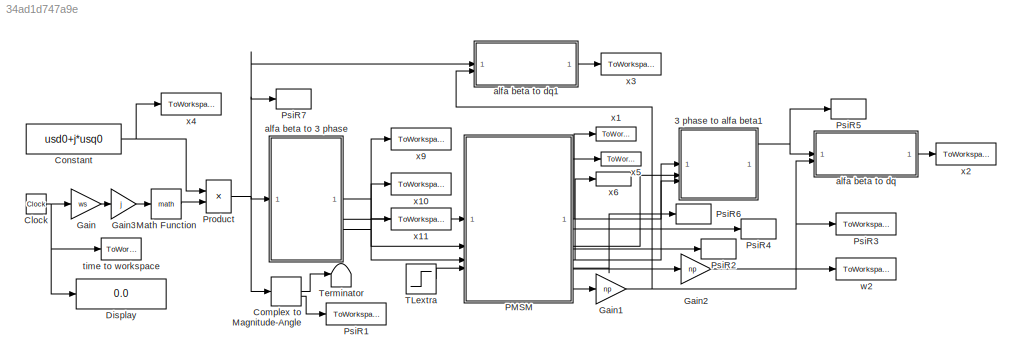
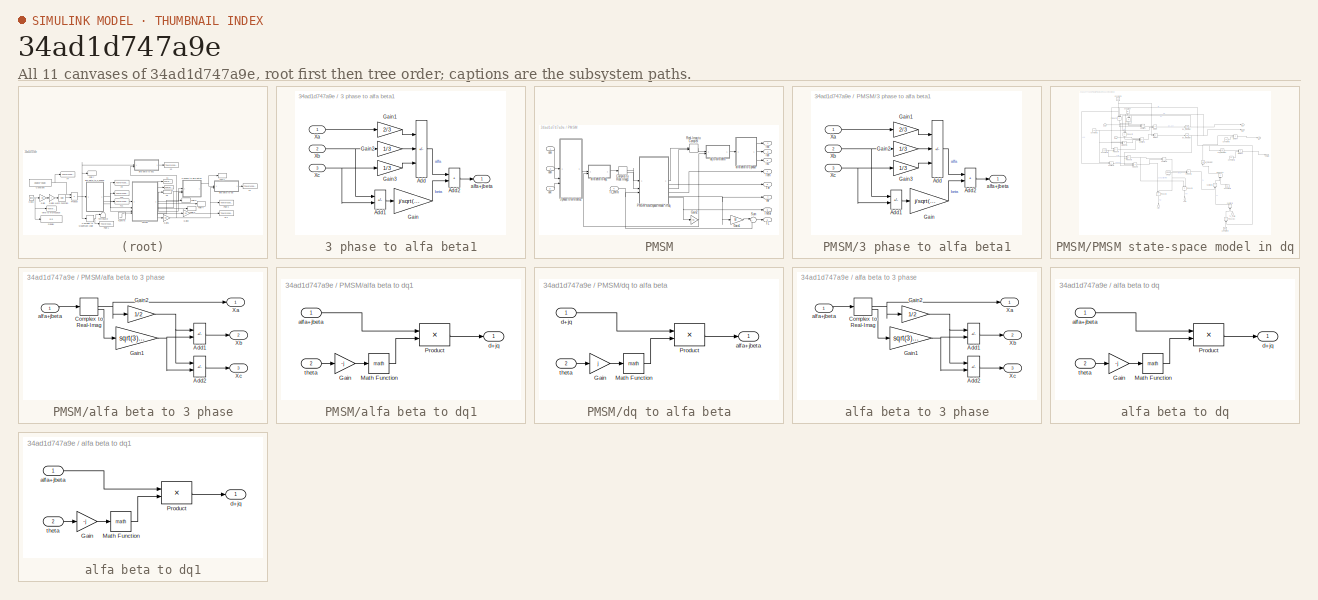
[diagram: thumbnail index - all 11 canvases of the model, root first then tree order]
MODEL slx_34ad1d747a9e
KIND model
CONFIG AbsTol = 1e-8
CONFIG EnableMultiTasking = off
CONFIG FixedStep = auto
CONFIG MaxStep = 1e-3
CONFIG MinStep = auto
CONFIG RelTol = 1e-6
CONFIG SampleTimeConstraint = Unconstrained
CONFIG SolverName = ode45
CONFIG StartTime = 0.0
CONFIG StopTime = 10.0
BLOCK [SubSystem] 3 phase to alfa beta1
  NameLocation = top
BLOCK [Sum] 3 phase to alfa beta1/Add
  IconShape = rectangular
  Inputs = +--
BLOCK [Sum] 3 phase to alfa beta1/Add1
  IconShape = rectangular
  Inputs = +-
BLOCK [Sum] 3 phase to alfa beta1/Add2
  IconShape = rectangular
BLOCK [Gain] 3 phase to alfa beta1/Gain
  Gain = j/sqrt(3)
BLOCK [Gain] 3 phase to alfa beta1/Gain1
  Gain = 2/3
BLOCK [Gain] 3 phase to alfa beta1/Gain2
  Gain = 1/3
BLOCK [Gain] 3 phase to alfa beta1/Gain3
  Gain = 1/3
BLOCK [Inport] 3 phase to alfa beta1/Xa
BLOCK [Inport] 3 phase to alfa beta1/Xb
  Port = 2
BLOCK [Inport] 3 phase to alfa beta1/Xc
  Port = 3
BLOCK [Outport] 3 phase to alfa beta1/alfa+jbeta
  VectorParamsAs1DForOutWhenUnconnected = off
BLOCK [Clock] Clock
BLOCK [ComplexToMagnitudeAngle] Complex to Magnitude-Angle
BLOCK [Constant] Constant
  Value = usd0+j*usq0
BLOCK [Display] Display
  Decimation = 1
BLOCK [Gain] Gain
  Gain = ws
BLOCK [Gain] Gain1
  Gain = np
BLOCK [Gain] Gain2
  Gain = np
BLOCK [Gain] Gain3
  Gain = j
  OutDataTypeStr = Inherit: Same as input
  ParamDataTypeStr = Inherit: Same as input
  SaturateOnIntegerOverflow = on
BLOCK [Math] Math Function
  SignedPower = on
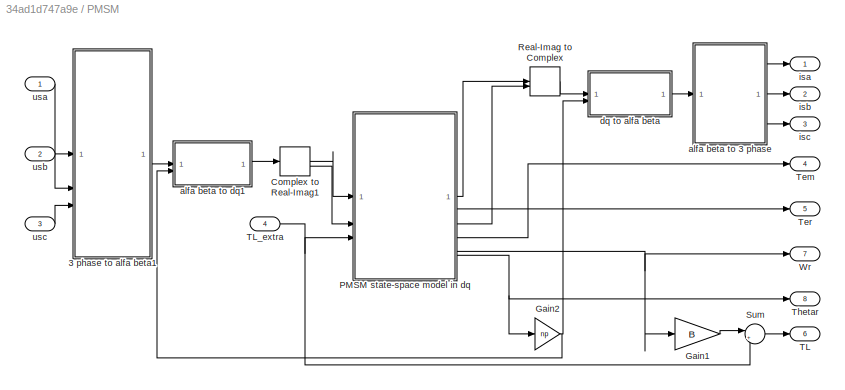
BLOCK [SubSystem] PMSM
BLOCK [SubSystem] PMSM/3 phase to alfa beta1
  NameLocation = top
BLOCK [Sum] PMSM/3 phase to alfa beta1/Add
  IconShape = rectangular
  Inputs = +--
BLOCK [Sum] PMSM/3 phase to alfa beta1/Add1
  IconShape = rectangular
  Inputs = +-
BLOCK [Sum] PMSM/3 phase to alfa beta1/Add2
  IconShape = rectangular
BLOCK [Gain] PMSM/3 phase to alfa beta1/Gain
  Gain = j/sqrt(3)
BLOCK [Gain] PMSM/3 phase to alfa beta1/Gain1
  Gain = 2/3
BLOCK [Gain] PMSM/3 phase to alfa beta1/Gain2
  Gain = 1/3
BLOCK [Gain] PMSM/3 phase to alfa beta1/Gain3
  Gain = 1/3
BLOCK [Inport] PMSM/3 phase to alfa beta1/Xa
BLOCK [Inport] PMSM/3 phase to alfa beta1/Xb
  Port = 2
BLOCK [Inport] PMSM/3 phase to alfa beta1/Xc
  Port = 3
BLOCK [Outport] PMSM/3 phase to alfa beta1/alfa+jbeta
  VectorParamsAs1DForOutWhenUnconnected = off
BLOCK [ComplexToRealImag] PMSM/Complex to Real-Imag1
BLOCK [Gain] PMSM/Gain1
  Gain = B
BLOCK [Gain] PMSM/Gain2
  Gain = np
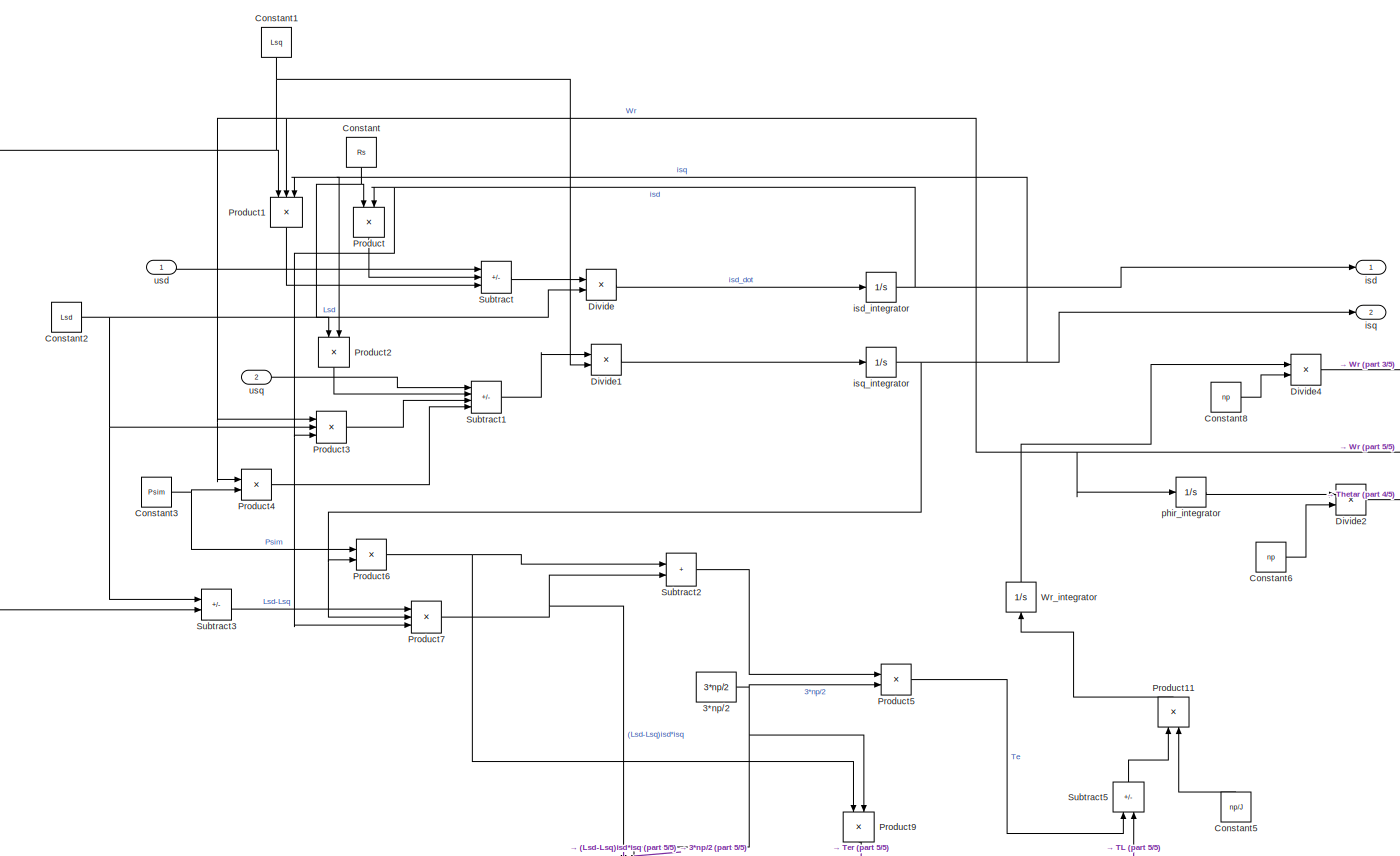
[diagram: PMSM/PMSM state-space model in dq - part 1/5, full width, middle band]
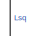
[diagram: PMSM/PMSM state-space model in dq - part 2/5, top left region]
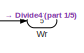
[diagram: PMSM/PMSM state-space model in dq - part 3/5, top right region]
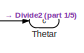
[diagram: PMSM/PMSM state-space model in dq - part 4/5, middle right region]
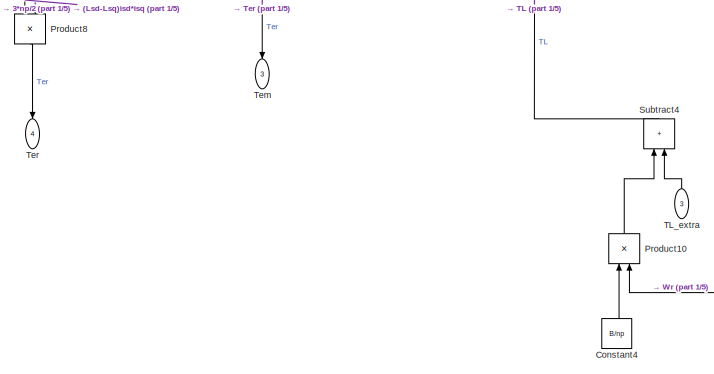
[diagram: PMSM/PMSM state-space model in dq - part 5/5, bottom center region]
BLOCK [SubSystem] PMSM/PMSM state-space model in dq
BLOCK [Constant] PMSM/PMSM state-space model in dq/3*np//2
  Value = 3*np/2
BLOCK [Constant] PMSM/PMSM state-space model in dq/Constant
  NameLocation = left
  Value = Rs
BLOCK [Constant] PMSM/PMSM state-space model in dq/Constant1
  NameLocation = left
  Value = Lsq
BLOCK [Constant] PMSM/PMSM state-space model in dq/Constant2
  Value = Lsd
BLOCK [Constant] PMSM/PMSM state-space model in dq/Constant3
  Value = Psim
BLOCK [Constant] PMSM/PMSM state-space model in dq/Constant4
  NameLocation = right
  Value = B/np
BLOCK [Constant] PMSM/PMSM state-space model in dq/Constant5
  NameLocation = right
  Value = np/J
BLOCK [Constant] PMSM/PMSM state-space model in dq/Constant6
  Value = np
BLOCK [Constant] PMSM/PMSM state-space model in dq/Constant8
  Value = np
BLOCK [Product] PMSM/PMSM state-space model in dq/Divide
  Inputs = */
BLOCK [Product] PMSM/PMSM state-space model in dq/Divide1
  Inputs = */
BLOCK [Product] PMSM/PMSM state-space model in dq/Divide2
  Inputs = */
BLOCK [Product] PMSM/PMSM state-space model in dq/Divide4
  Inputs = */
BLOCK [Product] PMSM/PMSM state-space model in dq/Product
  NameLocation = left
BLOCK [Product] PMSM/PMSM state-space model in dq/Product1
  Inputs = 3
  NameLocation = left
BLOCK [Product] PMSM/PMSM state-space model in dq/Product10
  NameLocation = right
BLOCK [Product] PMSM/PMSM state-space model in dq/Product11
  NameLocation = right
BLOCK [Product] PMSM/PMSM state-space model in dq/Product2
  NameLocation = left
BLOCK [Product] PMSM/PMSM state-space model in dq/Product3
  Inputs = 3
BLOCK [Product] PMSM/PMSM state-space model in dq/Product4
BLOCK [Product] PMSM/PMSM state-space model in dq/Product5
BLOCK [Product] PMSM/PMSM state-space model in dq/Product6
BLOCK [Product] PMSM/PMSM state-space model in dq/Product7
  Inputs = 3
BLOCK [Product] PMSM/PMSM state-space model in dq/Product8
  NameLocation = left
BLOCK [Product] PMSM/PMSM state-space model in dq/Product9
  NameLocation = left
BLOCK [Sum] PMSM/PMSM state-space model in dq/Subtract
  IconShape = rectangular
  Inputs = +-+
BLOCK [Sum] PMSM/PMSM state-space model in dq/Subtract1
  IconShape = rectangular
  Inputs = +---
BLOCK [Sum] PMSM/PMSM state-space model in dq/Subtract2
  IconShape = rectangular
BLOCK [Sum] PMSM/PMSM state-space model in dq/Subtract3
  IconShape = rectangular
  Inputs = +-
BLOCK [Sum] PMSM/PMSM state-space model in dq/Subtract4
  IconShape = rectangular
  NameLocation = right
BLOCK [Sum] PMSM/PMSM state-space model in dq/Subtract5
  IconShape = rectangular
  Inputs = +-
  NameLocation = right
BLOCK [Inport] PMSM/PMSM state-space model in dq/TL_extra
  NameLocation = right
  Port = 3
BLOCK [Outport] PMSM/PMSM state-space model in dq/Tem
  NameLocation = left
  Port = 3
  VectorParamsAs1DForOutWhenUnconnected = off
BLOCK [Outport] PMSM/PMSM state-space model in dq/Ter
  NameLocation = left
  Port = 4
  VectorParamsAs1DForOutWhenUnconnected = off
BLOCK [Outport] PMSM/PMSM state-space model in dq/Thetar
  Port = 6
  VectorParamsAs1DForOutWhenUnconnected = off
BLOCK [Outport] PMSM/PMSM state-space model in dq/Wr
  Port = 5
  VectorParamsAs1DForOutWhenUnconnected = off
BLOCK [Integrator] PMSM/PMSM state-space model in dq/Wr_integrator
  InitialCondition = wr0
  LimitOutput = on
  LowerSaturationLimit = 0
  NameLocation = right
BLOCK [Outport] PMSM/PMSM state-space model in dq/isd
  VectorParamsAs1DForOutWhenUnconnected = off
BLOCK [Integrator] PMSM/PMSM state-space model in dq/isd_integrator
  InitialCondition = isd0
BLOCK [Outport] PMSM/PMSM state-space model in dq/isq
  Port = 2
  VectorParamsAs1DForOutWhenUnconnected = off
BLOCK [Integrator] PMSM/PMSM state-space model in dq/isq_integrator
  InitialCondition = isq0
BLOCK [Integrator] PMSM/PMSM state-space model in dq/phir_integrator
  InitialCondition = theta0
BLOCK [Inport] PMSM/PMSM state-space model in dq/usd
BLOCK [Inport] PMSM/PMSM state-space model in dq/usq
  Port = 2
BLOCK [RealImagToComplex] PMSM/Real-Imag to Complex
BLOCK [Sum] PMSM/Sum
  Inputs = |++
  SaturateOnIntegerOverflow = on
BLOCK [Outport] PMSM/TL
  Port = 6
  VectorParamsAs1DForOutWhenUnconnected = off
BLOCK [Inport] PMSM/TL_extra
  Port = 4
BLOCK [Outport] PMSM/Tem
  Port = 4
  VectorParamsAs1DForOutWhenUnconnected = off
BLOCK [Outport] PMSM/Ter
  Port = 5
  VectorParamsAs1DForOutWhenUnconnected = off
BLOCK [Outport] PMSM/Thetar
  Port = 8
  VectorParamsAs1DForOutWhenUnconnected = off
BLOCK [Outport] PMSM/Wr
  Port = 7
  VectorParamsAs1DForOutWhenUnconnected = off
BLOCK [SubSystem] PMSM/alfa beta to 3 phase
  NameLocation = top
BLOCK [Sum] PMSM/alfa beta to 3 phase/Add1
  IconShape = rectangular
  Inputs = -+
BLOCK [Sum] PMSM/alfa beta to 3 phase/Add2
  IconShape = rectangular
  Inputs = --
BLOCK [ComplexToRealImag] PMSM/alfa beta to 3 phase/Complex to Real-Imag
BLOCK [Gain] PMSM/alfa beta to 3 phase/Gain1
  Gain = sqrt(3)/2
BLOCK [Gain] PMSM/alfa beta to 3 phase/Gain2
  Gain = 1/2
BLOCK [Outport] PMSM/alfa beta to 3 phase/Xa
  VectorParamsAs1DForOutWhenUnconnected = off
BLOCK [Outport] PMSM/alfa beta to 3 phase/Xb
  Port = 2
  VectorParamsAs1DForOutWhenUnconnected = off
BLOCK [Outport] PMSM/alfa beta to 3 phase/Xc
  Port = 3
  VectorParamsAs1DForOutWhenUnconnected = off
BLOCK [Inport] PMSM/alfa beta to 3 phase/alfa+jbeta
BLOCK [SubSystem] PMSM/alfa beta to dq1
BLOCK [Gain] PMSM/alfa beta to dq1/Gain
  Gain = -j
  OutDataTypeStr = Inherit: Same as input
  ParamDataTypeStr = Inherit: Same as input
  SaturateOnIntegerOverflow = on
BLOCK [Math] PMSM/alfa beta to dq1/Math Function
  SignedPower = on
BLOCK [Product] PMSM/alfa beta to dq1/Product
  OutDataTypeStr = Inherit: Same as first input
  SaturateOnIntegerOverflow = on
BLOCK [Inport] PMSM/alfa beta to dq1/alfa+jbeta
BLOCK [Outport] PMSM/alfa beta to dq1/d+jq
  VectorParamsAs1DForOutWhenUnconnected = off
BLOCK [Inport] PMSM/alfa beta to dq1/theta
  Port = 2
BLOCK [SubSystem] PMSM/dq to alfa beta
BLOCK [Gain] PMSM/dq to alfa beta/Gain
  Gain = j
  OutDataTypeStr = Inherit: Same as input
  ParamDataTypeStr = Inherit: Same as input
  SaturateOnIntegerOverflow = on
BLOCK [Math] PMSM/dq to alfa beta/Math Function
  SignedPower = on
BLOCK [Product] PMSM/dq to alfa beta/Product
  OutDataTypeStr = Inherit: Same as first input
  SaturateOnIntegerOverflow = on
BLOCK [Outport] PMSM/dq to alfa beta/alfa+jbeta
  VectorParamsAs1DForOutWhenUnconnected = off
BLOCK [Inport] PMSM/dq to alfa beta/d+jq
BLOCK [Inport] PMSM/dq to alfa beta/theta
  Port = 2
BLOCK [Outport] PMSM/isa
  VectorParamsAs1DForOutWhenUnconnected = off
BLOCK [Outport] PMSM/isb
  Port = 2
  VectorParamsAs1DForOutWhenUnconnected = off
BLOCK [Outport] PMSM/isc
  Port = 3
  VectorParamsAs1DForOutWhenUnconnected = off
BLOCK [Inport] PMSM/usa
BLOCK [Inport] PMSM/usb
  Port = 2
BLOCK [Inport] PMSM/usc
  Port = 3
BLOCK [Product] Product
  OutDataTypeStr = Inherit: Same as first input
  SaturateOnIntegerOverflow = on
BLOCK [ToWorkspace] PsiR1
  MaxDataPoints = inf
  SampleTime = -1
  VariableName = thetas
BLOCK [ToWorkspace] PsiR2
  MaxDataPoints = inf
  SampleTime = -1
  VariableName = Tl
BLOCK [ToWorkspace] PsiR3
  MaxDataPoints = inf
  SampleTime = -1
  VariableName = thetar
BLOCK [ToWorkspace] PsiR4
  MaxDataPoints = inf
  SampleTime = -1
  VariableName = Ter
BLOCK [ToWorkspace] PsiR5
  MaxDataPoints = inf
  SampleTime = -1
  VariableName = iss
BLOCK [ToWorkspace] PsiR6
  MaxDataPoints = inf
  SampleTime = -1
  VariableName = Tem
BLOCK [ToWorkspace] PsiR7
  MaxDataPoints = inf
  SampleTime = -1
  VariableName = uss
BLOCK [Step] TLextra
  After = TL_extra
  SampleTime = 0
  Time = TL_extra_time
BLOCK [Terminator] Terminator
BLOCK [SubSystem] alfa beta to 3 phase
  NameLocation = top
BLOCK [Sum] alfa beta to 3 phase/Add1
  IconShape = rectangular
  Inputs = -+
BLOCK [Sum] alfa beta to 3 phase/Add2
  IconShape = rectangular
  Inputs = --
BLOCK [ComplexToRealImag] alfa beta to 3 phase/Complex to Real-Imag
BLOCK [Gain] alfa beta to 3 phase/Gain1
  Gain = sqrt(3)/2
BLOCK [Gain] alfa beta to 3 phase/Gain2
  Gain = 1/2
BLOCK [Outport] alfa beta to 3 phase/Xa
  VectorParamsAs1DForOutWhenUnconnected = off
BLOCK [Outport] alfa beta to 3 phase/Xb
  Port = 2
  VectorParamsAs1DForOutWhenUnconnected = off
BLOCK [Outport] alfa beta to 3 phase/Xc
  Port = 3
  VectorParamsAs1DForOutWhenUnconnected = off
BLOCK [Inport] alfa beta to 3 phase/alfa+jbeta
BLOCK [SubSystem] alfa beta to dq
BLOCK [Gain] alfa beta to dq/Gain
  Gain = -j
  OutDataTypeStr = Inherit: Same as input
  ParamDataTypeStr = Inherit: Same as input
  SaturateOnIntegerOverflow = on
BLOCK [Math] alfa beta to dq/Math Function
  SignedPower = on
BLOCK [Product] alfa beta to dq/Product
  OutDataTypeStr = Inherit: Same as first input
  SaturateOnIntegerOverflow = on
BLOCK [Inport] alfa beta to dq/alfa+jbeta
BLOCK [Outport] alfa beta to dq/d+jq
  VectorParamsAs1DForOutWhenUnconnected = off
BLOCK [Inport] alfa beta to dq/theta
  Port = 2
BLOCK [SubSystem] alfa beta to dq1
BLOCK [Gain] alfa beta to dq1/Gain
  Gain = -j
  OutDataTypeStr = Inherit: Same as input
  ParamDataTypeStr = Inherit: Same as input
  SaturateOnIntegerOverflow = on
BLOCK [Math] alfa beta to dq1/Math Function
  SignedPower = on
BLOCK [Product] alfa beta to dq1/Product
  OutDataTypeStr = Inherit: Same as first input
  SaturateOnIntegerOverflow = on
BLOCK [Inport] alfa beta to dq1/alfa+jbeta
BLOCK [Outport] alfa beta to dq1/d+jq
  VectorParamsAs1DForOutWhenUnconnected = off
BLOCK [Inport] alfa beta to dq1/theta
  Port = 2
BLOCK [ToWorkspace] time to workspace
  MaxDataPoints = inf
  SampleTime = -1
  VariableName = time
BLOCK [ToWorkspace] w2
  MaxDataPoints = inf
  SampleTime = -1
  VariableName = w1
BLOCK [ToWorkspace] x1
  MaxDataPoints = inf
  SampleTime = -1
  VariableName = isa
BLOCK [ToWorkspace] x10
  MaxDataPoints = inf
  SampleTime = -1
  VariableName = usb
BLOCK [ToWorkspace] x11
  MaxDataPoints = inf
  SampleTime = -1
  VariableName = usc
BLOCK [ToWorkspace] x2
  MaxDataPoints = inf
  SampleTime = -1
  VariableName = idq
BLOCK [ToWorkspace] x3
  MaxDataPoints = inf
  SampleTime = -1
  VariableName = usdq
BLOCK [ToWorkspace] x4
  MaxDataPoints = inf
  SampleTime = -1
  VariableName = usxy
BLOCK [ToWorkspace] x5
  MaxDataPoints = inf
  SampleTime = -1
  VariableName = isb
BLOCK [ToWorkspace] x6
  MaxDataPoints = inf
  SampleTime = -1
  VariableName = isc
BLOCK [ToWorkspace] x9
  MaxDataPoints = inf
  SampleTime = -1
  VariableName = usa
LINE 3 phase to alfa beta1/Add1:1 -> 3 phase to alfa beta1/Gain:1
LINE 3 phase to alfa beta1/Add2:1 -> 3 phase to alfa beta1/alfa+jbeta:1
LINE 3 phase to alfa beta1/Add:1 -> 3 phase to alfa beta1/Add2:1
LINE 3 phase to alfa beta1/Gain1:1 -> 3 phase to alfa beta1/Add:1
LINE 3 phase to alfa beta1/Gain2:1 -> 3 phase to alfa beta1/Add:2
LINE 3 phase to alfa beta1/Gain3:1 -> 3 phase to alfa beta1/Add:3
LINE 3 phase to alfa beta1/Gain:1 -> 3 phase to alfa beta1/Add2:2
LINE 3 phase to alfa beta1/Xa:1 -> 3 phase to alfa beta1/Gain1:1
NET 3 phase to alfa beta1/Xb:1 -> 3 phase to alfa beta1/Add1:1, 3 phase to alfa beta1/Gain2:1
NET 3 phase to alfa beta1/Xc:1 -> 3 phase to alfa beta1/Add1:2, 3 phase to alfa beta1/Gain3:1
NET 3 phase to alfa beta1:1 -> PsiR5:1, alfa beta to dq:1
NET Clock:1 -> Display:1, Gain:1, time to workspace:1
LINE Complex to Magnitude-Angle:1 -> Terminator:1
LINE Complex to Magnitude-Angle:2 -> PsiR1:1
NET Constant:1 -> Product:1, x4:1
NET Gain1:1 -> PsiR3:1, alfa beta to dq1:2, alfa beta to dq:2
LINE Gain2:1 -> w2:1
LINE Gain3:1 -> Math Function:1
LINE Gain:1 -> Gain3:1
LINE Math Function:1 -> Product:2
LINE PMSM/3 phase to alfa beta1/Add1:1 -> PMSM/3 phase to alfa beta1/Gain:1
LINE PMSM/3 phase to alfa beta1/Add2:1 -> PMSM/3 phase to alfa beta1/alfa+jbeta:1
LINE PMSM/3 phase to alfa beta1/Add:1 -> PMSM/3 phase to alfa beta1/Add2:1
LINE PMSM/3 phase to alfa beta1/Gain1:1 -> PMSM/3 phase to alfa beta1/Add:1
LINE PMSM/3 phase to alfa beta1/Gain2:1 -> PMSM/3 phase to alfa beta1/Add:2
LINE PMSM/3 phase to alfa beta1/Gain3:1 -> PMSM/3 phase to alfa beta1/Add:3
LINE PMSM/3 phase to alfa beta1/Gain:1 -> PMSM/3 phase to alfa beta1/Add2:2
LINE PMSM/3 phase to alfa beta1/Xa:1 -> PMSM/3 phase to alfa beta1/Gain1:1
NET PMSM/3 phase to alfa beta1/Xb:1 -> PMSM/3 phase to alfa beta1/Add1:1, PMSM/3 phase to alfa beta1/Gain2:1
NET PMSM/3 phase to alfa beta1/Xc:1 -> PMSM/3 phase to alfa beta1/Add1:2, PMSM/3 phase to alfa beta1/Gain3:1
LINE PMSM/3 phase to alfa beta1:1 -> PMSM/alfa beta to dq1:1
LINE PMSM/Complex to Real-Imag1:1 -> PMSM/PMSM state-space model in dq:1
LINE PMSM/Complex to Real-Imag1:2 -> PMSM/PMSM state-space model in dq:2
LINE PMSM/Gain1:1 -> PMSM/Sum:1
NET PMSM/Gain2:1 -> PMSM/alfa beta to dq1:2, PMSM/dq to alfa beta:2
NET PMSM/PMSM state-space model in dq/3*np//2:1 -> PMSM/PMSM state-space model in dq/Product5:2, PMSM/PMSM state-space model in dq/Product8:2, PMSM/PMSM state-space model in dq/Product9:2
NET PMSM/PMSM state-space model in dq/Constant1:1 -> PMSM/PMSM state-space model in dq/Divide1:2, PMSM/PMSM state-space model in dq/Product1:1, PMSM/PMSM state-space model in dq/Subtract3:2
NET PMSM/PMSM state-space model in dq/Constant2:1 -> PMSM/PMSM state-space model in dq/Divide:2, PMSM/PMSM state-space model in dq/Product3:2, PMSM/PMSM state-space model in dq/Subtract3:1
NET PMSM/PMSM state-space model in dq/Constant3:1 -> PMSM/PMSM state-space model in dq/Product4:2, PMSM/PMSM state-space model in dq/Product6:1
LINE PMSM/PMSM state-space model in dq/Constant4:1 -> PMSM/PMSM state-space model in dq/Product10:1
LINE PMSM/PMSM state-space model in dq/Constant5:1 -> PMSM/PMSM state-space model in dq/Product11:2
LINE PMSM/PMSM state-space model in dq/Constant6:1 -> PMSM/PMSM state-space model in dq/Divide2:2
LINE PMSM/PMSM state-space model in dq/Constant8:1 -> PMSM/PMSM state-space model in dq/Divide4:2
NET PMSM/PMSM state-space model in dq/Constant:1 -> PMSM/PMSM state-space model in dq/Product2:1, PMSM/PMSM state-space model in dq/Product:1
LINE PMSM/PMSM state-space model in dq/Divide1:1 -> PMSM/PMSM state-space model in dq/isq_integrator:1
LINE PMSM/PMSM state-space model in dq/Divide2:1 -> PMSM/PMSM state-space model in dq/Thetar:1
LINE PMSM/PMSM state-space model in dq/Divide4:1 -> PMSM/PMSM state-space model in dq/Wr:1
LINE PMSM/PMSM state-space model in dq/Divide:1 -> PMSM/PMSM state-space model in dq/isd_integrator:1
LINE PMSM/PMSM state-space model in dq/Product10:1 -> PMSM/PMSM state-space model in dq/Subtract4:1
LINE PMSM/PMSM state-space model in dq/Product11:1 -> PMSM/PMSM state-space model in dq/Wr_integrator:1
LINE PMSM/PMSM state-space model in dq/Product1:1 -> PMSM/PMSM state-space model in dq/Subtract:3
LINE PMSM/PMSM state-space model in dq/Product2:1 -> PMSM/PMSM state-space model in dq/Subtract1:2
LINE PMSM/PMSM state-space model in dq/Product3:1 -> PMSM/PMSM state-space model in dq/Subtract1:3
LINE PMSM/PMSM state-space model in dq/Product4:1 -> PMSM/PMSM state-space model in dq/Subtract1:4
LINE PMSM/PMSM state-space model in dq/Product5:1 -> PMSM/PMSM state-space model in dq/Subtract5:1
NET PMSM/PMSM state-space model in dq/Product6:1 -> PMSM/PMSM state-space model in dq/Product9:1, PMSM/PMSM state-space model in dq/Subtract2:1
NET PMSM/PMSM state-space model in dq/Product7:1 -> PMSM/PMSM state-space model in dq/Product8:1, PMSM/PMSM state-space model in dq/Subtract2:2
LINE PMSM/PMSM state-space model in dq/Product8:1 -> PMSM/PMSM state-space model in dq/Ter:1
LINE PMSM/PMSM state-space model in dq/Product9:1 -> PMSM/PMSM state-space model in dq/Tem:1
LINE PMSM/PMSM state-space model in dq/Product:1 -> PMSM/PMSM state-space model in dq/Subtract:2
LINE PMSM/PMSM state-space model in dq/Subtract1:1 -> PMSM/PMSM state-space model in dq/Divide1:1
LINE PMSM/PMSM state-space model in dq/Subtract2:1 -> PMSM/PMSM state-space model in dq/Product5:1
LINE PMSM/PMSM state-space model in dq/Subtract3:1 -> PMSM/PMSM state-space model in dq/Product7:1
LINE PMSM/PMSM state-space model in dq/Subtract4:1 -> PMSM/PMSM state-space model in dq/Subtract5:2
LINE PMSM/PMSM state-space model in dq/Subtract5:1 -> PMSM/PMSM state-space model in dq/Product11:1
LINE PMSM/PMSM state-space model in dq/Subtract:1 -> PMSM/PMSM state-space model in dq/Divide:1
LINE PMSM/PMSM state-space model in dq/TL_extra:1 -> PMSM/PMSM state-space model in dq/Subtract4:2
NET PMSM/PMSM state-space model in dq/Wr_integrator:1 -> PMSM/PMSM state-space model in dq/Divide4:1, PMSM/PMSM state-space model in dq/Product10:2, PMSM/PMSM state-space model in dq/Product1:2, PMSM/PMSM state-space model in dq/Product3:1, PMSM/PMSM state-space model in dq/Product4:1, PMSM/PMSM state-space model in dq/phir_integrator:1
NET PMSM/PMSM state-space model in dq/isd_integrator:1 -> PMSM/PMSM state-space model in dq/Product3:3, PMSM/PMSM state-space model in dq/Product7:3, PMSM/PMSM state-space model in dq/Product:2, PMSM/PMSM state-space model in dq/isd:1
NET PMSM/PMSM state-space model in dq/isq_integrator:1 -> PMSM/PMSM state-space model in dq/Product1:3, PMSM/PMSM state-space model in dq/Product2:2, PMSM/PMSM state-space model in dq/Product6:2, PMSM/PMSM state-space model in dq/Product7:2, PMSM/PMSM state-space model in dq/isq:1
LINE PMSM/PMSM state-space model in dq/phir_integrator:1 -> PMSM/PMSM state-space model in dq/Divide2:1
LINE PMSM/PMSM state-space model in dq/usd:1 -> PMSM/PMSM state-space model in dq/Subtract:1
LINE PMSM/PMSM state-space model in dq/usq:1 -> PMSM/PMSM state-space model in dq/Subtract1:1
LINE PMSM/PMSM state-space model in dq:1 -> PMSM/Real-Imag to Complex:1
LINE PMSM/PMSM state-space model in dq:2 -> PMSM/Real-Imag to Complex:2
LINE PMSM/PMSM state-space model in dq:3 -> PMSM/Tem:1
LINE PMSM/PMSM state-space model in dq:4 -> PMSM/Ter:1
NET PMSM/PMSM state-space model in dq:5 -> PMSM/Gain1:1, PMSM/Wr:1
NET PMSM/PMSM state-space model in dq:6 -> PMSM/Gain2:1, PMSM/Thetar:1
LINE PMSM/Real-Imag to Complex:1 -> PMSM/dq to alfa beta:1
LINE PMSM/Sum:1 -> PMSM/TL:1
NET PMSM/TL_extra:1 -> PMSM/PMSM state-space model in dq:3, PMSM/Sum:2
LINE PMSM/alfa beta to 3 phase/Add1:1 -> PMSM/alfa beta to 3 phase/Xb:1
LINE PMSM/alfa beta to 3 phase/Add2:1 -> PMSM/alfa beta to 3 phase/Xc:1
NET PMSM/alfa beta to 3 phase/Complex to Real-Imag:1 -> PMSM/alfa beta to 3 phase/Gain2:1, PMSM/alfa beta to 3 phase/Xa:1
LINE PMSM/alfa beta to 3 phase/Complex to Real-Imag:2 -> PMSM/alfa beta to 3 phase/Gain1:1
NET PMSM/alfa beta to 3 phase/Gain1:1 -> PMSM/alfa beta to 3 phase/Add1:2, PMSM/alfa beta to 3 phase/Add2:2
NET PMSM/alfa beta to 3 phase/Gain2:1 -> PMSM/alfa beta to 3 phase/Add1:1, PMSM/alfa beta to 3 phase/Add2:1
LINE PMSM/alfa beta to 3 phase/alfa+jbeta:1 -> PMSM/alfa beta to 3 phase/Complex to Real-Imag:1
LINE PMSM/alfa beta to 3 phase:1 -> PMSM/isa:1
LINE PMSM/alfa beta to 3 phase:2 -> PMSM/isb:1
LINE PMSM/alfa beta to 3 phase:3 -> PMSM/isc:1
LINE PMSM/alfa beta to dq1/Gain:1 -> PMSM/alfa beta to dq1/Math Function:1
LINE PMSM/alfa beta to dq1/Math Function:1 -> PMSM/alfa beta to dq1/Product:2
LINE PMSM/alfa beta to dq1/Product:1 -> PMSM/alfa beta to dq1/d+jq:1
LINE PMSM/alfa beta to dq1/alfa+jbeta:1 -> PMSM/alfa beta to dq1/Product:1
LINE PMSM/alfa beta to dq1/theta:1 -> PMSM/alfa beta to dq1/Gain:1
LINE PMSM/alfa beta to dq1:1 -> PMSM/Complex to Real-Imag1:1
LINE PMSM/dq to alfa beta/Gain:1 -> PMSM/dq to alfa beta/Math Function:1
LINE PMSM/dq to alfa beta/Math Function:1 -> PMSM/dq to alfa beta/Product:2
LINE PMSM/dq to alfa beta/Product:1 -> PMSM/dq to alfa beta/alfa+jbeta:1
LINE PMSM/dq to alfa beta/d+jq:1 -> PMSM/dq to alfa beta/Product:1
LINE PMSM/dq to alfa beta/theta:1 -> PMSM/dq to alfa beta/Gain:1
LINE PMSM/dq to alfa beta:1 -> PMSM/alfa beta to 3 phase:1
LINE PMSM/usa:1 -> PMSM/3 phase to alfa beta1:1
LINE PMSM/usb:1 -> PMSM/3 phase to alfa beta1:2
LINE PMSM/usc:1 -> PMSM/3 phase to alfa beta1:3
NET PMSM:1 -> 3 phase to alfa beta1:1, x1:1
NET PMSM:2 -> 3 phase to alfa beta1:2, x5:1
NET PMSM:3 -> 3 phase to alfa beta1:3, x6:1
LINE PMSM:4 -> PsiR6:1
LINE PMSM:5 -> PsiR4:1
LINE PMSM:6 -> PsiR2:1
LINE PMSM:7 -> Gain2:1
LINE PMSM:8 -> Gain1:1
NET Product:1 -> Complex to Magnitude-Angle:1, PsiR7:1, alfa beta to 3 phase:1, alfa beta to dq1:1
LINE TLextra:1 -> PMSM:4
LINE alfa beta to 3 phase/Add1:1 -> alfa beta to 3 phase/Xb:1
LINE alfa beta to 3 phase/Add2:1 -> alfa beta to 3 phase/Xc:1
NET alfa beta to 3 phase/Complex to Real-Imag:1 -> alfa beta to 3 phase/Gain2:1, alfa beta to 3 phase/Xa:1
LINE alfa beta to 3 phase/Complex to Real-Imag:2 -> alfa beta to 3 phase/Gain1:1
NET alfa beta to 3 phase/Gain1:1 -> alfa beta to 3 phase/Add1:2, alfa beta to 3 phase/Add2:2
NET alfa beta to 3 phase/Gain2:1 -> alfa beta to 3 phase/Add1:1, alfa beta to 3 phase/Add2:1
LINE alfa beta to 3 phase/alfa+jbeta:1 -> alfa beta to 3 phase/Complex to Real-Imag:1
NET alfa beta to 3 phase:1 -> PMSM:1, x9:1
NET alfa beta to 3 phase:2 -> PMSM:2, x10:1
NET alfa beta to 3 phase:3 -> PMSM:3, x11:1
LINE alfa beta to dq/Gain:1 -> alfa beta to dq/Math Function:1
LINE alfa beta to dq/Math Function:1 -> alfa beta to dq/Product:2
LINE alfa beta to dq/Product:1 -> alfa beta to dq/d+jq:1
LINE alfa beta to dq/alfa+jbeta:1 -> alfa beta to dq/Product:1
LINE alfa beta to dq/theta:1 -> alfa beta to dq/Gain:1
LINE alfa beta to dq1/Gain:1 -> alfa beta to dq1/Math Function:1
LINE alfa beta to dq1/Math Function:1 -> alfa beta to dq1/Product:2
LINE alfa beta to dq1/Product:1 -> alfa beta to dq1/d+jq:1
LINE alfa beta to dq1/alfa+jbeta:1 -> alfa beta to dq1/Product:1
LINE alfa beta to dq1/theta:1 -> alfa beta to dq1/Gain:1
LINE alfa beta to dq1:1 -> x3:1
LINE alfa beta to dq:1 -> x2:1
note: NET lines group one-source signal fan-out (src -> all destinations, sorted); 1:1 wires keep LINE
